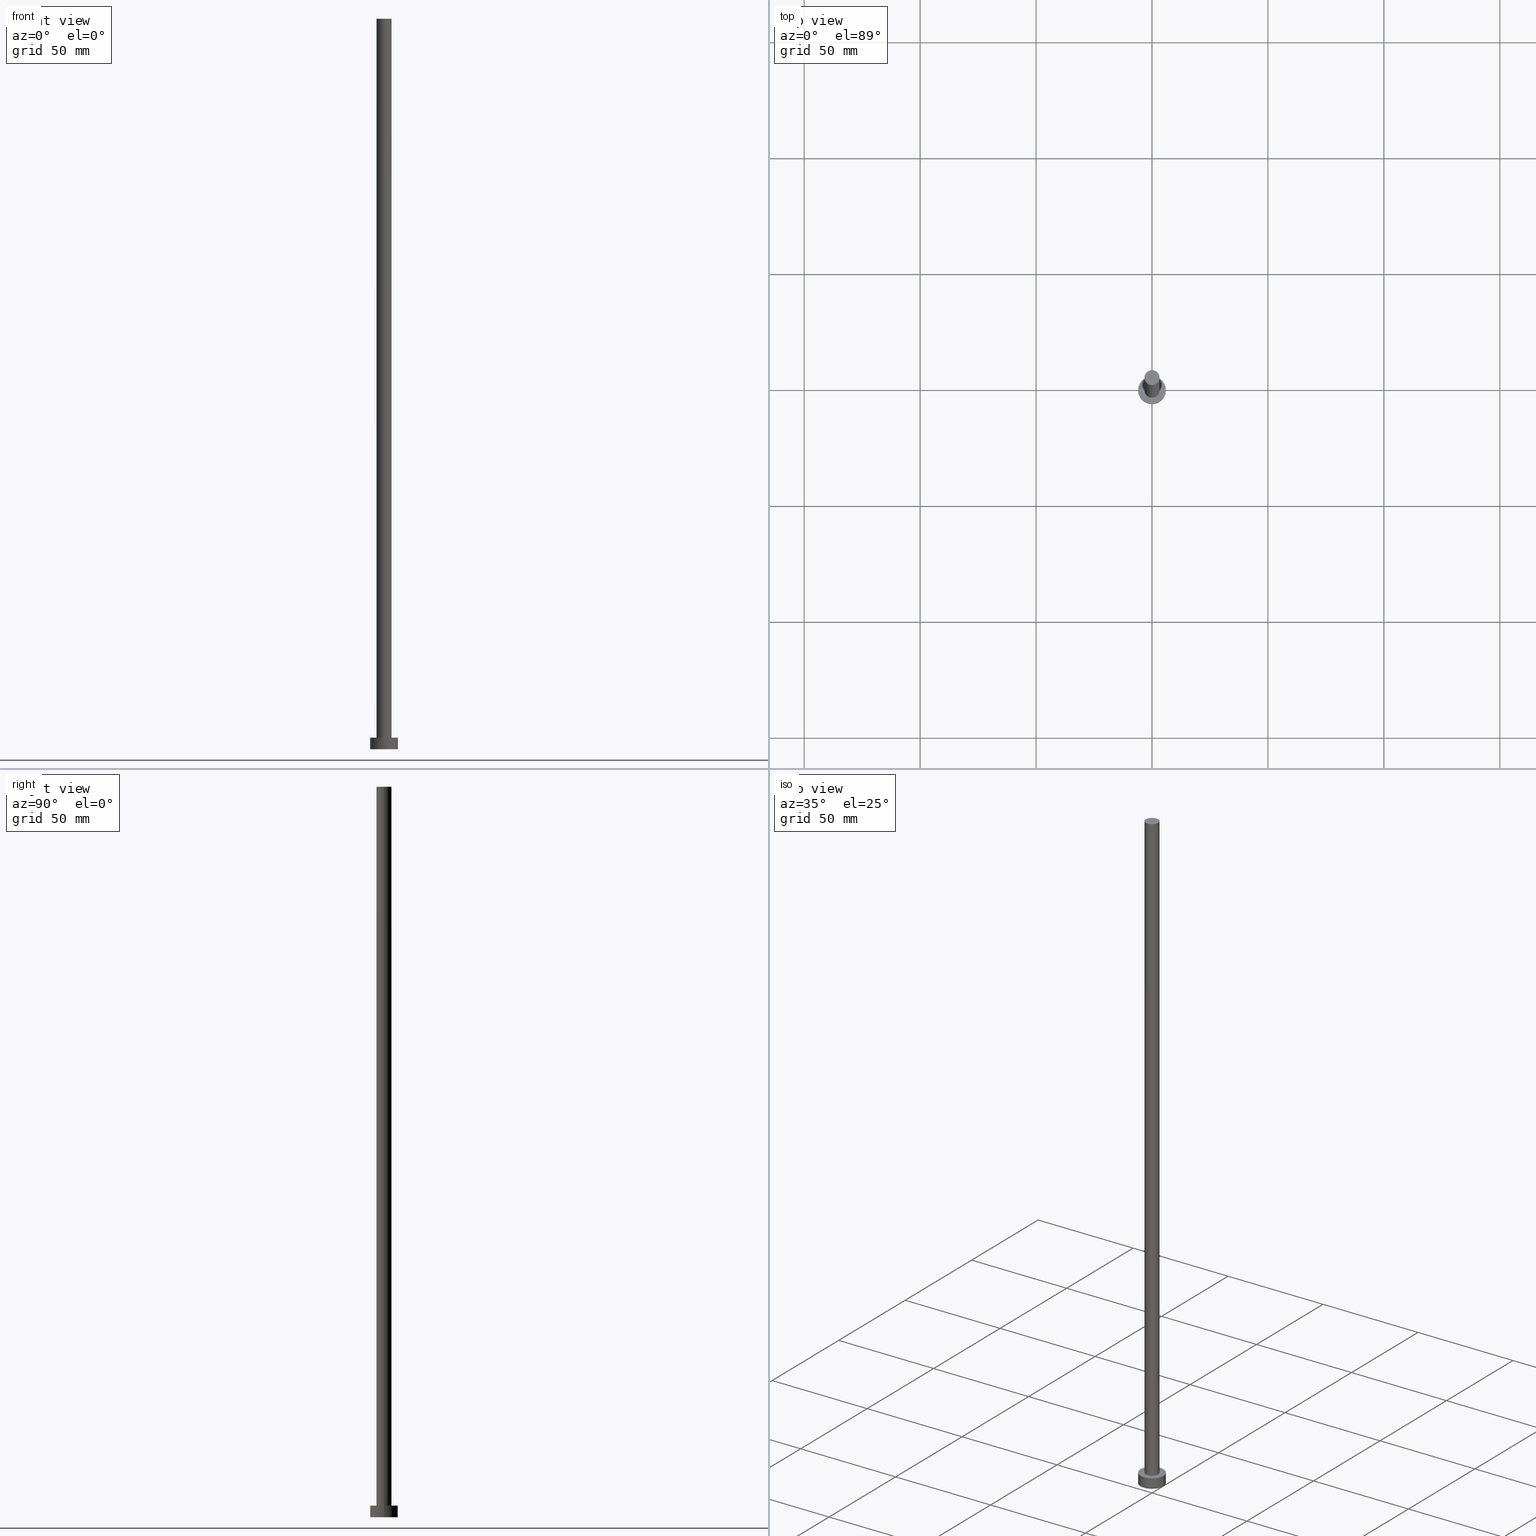
[diagram: canonical four-view strip — front | top / right | iso, engineering-drawing reading convention]
A machine part, canonical four-view strip (front | top / right | iso — engineering-drawing reading convention). The complete STEP part file that produces these views, byte-faithful:
ISO-10303-21;
HEADER;
FILE_DESCRIPTION (( 'STEP AP203' ),
    '1' );
FILE_NAME ('6873.STEP',
    '2023-02-13T15:16:54',
    ( '' ),
    ( '' ),
    'SwSTEP 2.0',
    'SolidWorks 2019',
    '' );
FILE_SCHEMA (( 'CONFIG_CONTROL_DESIGN' ));
ENDSEC;

DATA;
#1 = CARTESIAN_POINT ( 'NONE',  ( 0.000000000000000000, 0.000000000000000000, 0.000000000000000000 ) ) ;
#2 = LINE ( 'NONE', #39, #204 ) ;
#3 = EDGE_CURVE ( 'NONE', #88, #94, #6, .T. ) ;
#4 = DATE_AND_TIME ( #166, #117 ) ;
#5 = VECTOR ( 'NONE', #69, 1000.000000000000000 ) ;
#6 = LINE ( 'NONE', #81, #5 ) ;
#7 = ADVANCED_FACE ( 'NONE', ( #84 ), #67, .T. ) ;
#8 = CARTESIAN_POINT ( 'NONE',  ( 3.250000000000000444, 3.980102097228898231E-16, 315.0000000000000000 ) ) ;
#9 = CC_DESIGN_PERSON_AND_ORGANIZATION_ASSIGNMENT ( #162, #242, ( #227 ) ) ;
#10 =( NAMED_UNIT ( * ) PLANE_ANGLE_UNIT ( ) SI_UNIT ( $, .RADIAN. ) );
#11 = DIRECTION ( 'NONE',  ( 0.000000000000000000, 0.000000000000000000, 1.000000000000000000 ) ) ;
#12 = ADVANCED_FACE ( 'NONE', ( #29 ), #45, .T. ) ;
#13 = APPLICATION_CONTEXT ( 'configuration controlled 3d designs of mechanical parts and assemblies' ) ;
#14 = MANIFOLD_SOLID_BREP ( 'P�idat vysunut�m3', #116 ) ;
#15 = DIRECTION ( 'NONE',  ( 1.000000000000000000, 0.000000000000000000, -0.000000000000000000 ) ) ;
#16 = CIRCLE ( 'NONE', #199, 6.000000000000000888 ) ;
#17 = LOCAL_TIME ( 16, 16, 54.00000000000000000, #201 ) ;
#18 = DIRECTION ( 'NONE',  ( -0.000000000000000000, -0.000000000000000000, -1.000000000000000000 ) ) ;
#19 = CC_DESIGN_PERSON_AND_ORGANIZATION_ASSIGNMENT ( #153, #194, ( #254 ) ) ;
#20 = ORIENTED_EDGE ( 'NONE', *, *, #218, .T. ) ;
#21 = AXIS2_PLACEMENT_3D ( 'NONE', #102, #198, #216 ) ;
#22 = AXIS2_PLACEMENT_3D ( 'NONE', #158, #161, #25 ) ;
#23 = FACE_OUTER_BOUND ( 'NONE', #60, .T. ) ;
#24 = APPROVAL_DATE_TIME ( #240, #189 ) ;
#25 = DIRECTION ( 'NONE',  ( 1.000000000000000000, 0.000000000000000000, 0.000000000000000000 ) ) ;
#26 = APPROVAL_STATUS ( 'not_yet_approved' ) ;
#27 = FACE_OUTER_BOUND ( 'NONE', #96, .T. ) ;
#28 = CC_DESIGN_DATE_AND_TIME_ASSIGNMENT ( #252, #168, ( #254 ) ) ;
#29 = FACE_OUTER_BOUND ( 'NONE', #188, .T. ) ;
#30 = FACE_OUTER_BOUND ( 'NONE', #55, .T. ) ;
#31 = ORIENTED_EDGE ( 'NONE', *, *, #228, .T. ) ;
#32 = DIRECTION ( 'NONE',  ( -0.000000000000000000, -0.000000000000000000, -1.000000000000000000 ) ) ;
#33 = APPROVAL_PERSON_ORGANIZATION ( #223, #217, #66 ) ;
#34 = AXIS2_PLACEMENT_3D ( 'NONE', #170, #246, #147 ) ;
#35 = PERSON_AND_ORGANIZATION ( #54, #92 ) ;
#36 = ADVANCED_FACE ( 'NONE', ( #27 ), #222, .F. ) ;
#37 = CYLINDRICAL_SURFACE ( 'NONE', #163, 3.250000000000000444 ) ;
#38 = ORIENTED_EDGE ( 'NONE', *, *, #235, .F. ) ;
#39 = CARTESIAN_POINT ( 'NONE',  ( -6.000000000000000888, 0.000000000000000000, 5.000000000000000000 ) ) ;
#40 = APPLICATION_PROTOCOL_DEFINITION ( 'international standard', 'config_control_design', 1994, #13 ) ;
#41 = DIRECTION ( 'NONE',  ( -0.000000000000000000, -0.000000000000000000, -1.000000000000000000 ) ) ;
#42 = VECTOR ( 'NONE', #41, 1000.000000000000000 ) ;
#43 = CARTESIAN_POINT ( 'NONE',  ( -6.000000000000000888, 0.000000000000000000, 5.000000000000000000 ) ) ;
#44 = DATE_TIME_ROLE ( 'classification_date' ) ;
#45 = CYLINDRICAL_SURFACE ( 'NONE', #157, 6.000000000000000888 ) ;
#46 = EDGE_CURVE ( 'NONE', #233, #94, #186, .T. ) ;
#47 = VERTEX_POINT ( 'NONE', #51 ) ;
#48 =( GEOMETRIC_REPRESENTATION_CONTEXT ( 3 ) GLOBAL_UNCERTAINTY_ASSIGNED_CONTEXT ( ( #187 ) ) GLOBAL_UNIT_ASSIGNED_CONTEXT ( ( #57, #10, #151 ) ) REPRESENTATION_CONTEXT ( 'NONE', 'WORKASPACE' ) );
#49 = SHAPE_DEFINITION_REPRESENTATION ( #80, #110 ) ;
#50 = DIRECTION ( 'NONE',  ( 1.000000000000000000, 0.000000000000000000, -0.000000000000000000 ) ) ;
#51 = CARTESIAN_POINT ( 'NONE',  ( -3.250000000000000444, 0.000000000000000000, 5.000000000000000000 ) ) ;
#52 = ORIENTED_EDGE ( 'NONE', *, *, #202, .F. ) ;
#53 = CARTESIAN_POINT ( 'NONE',  ( 6.000000000000000888, 7.347880794884120722E-16, 5.000000000000000000 ) ) ;
#54 = PERSON ( 'NEUR�EN�', 'NEUR�EN�', 'NEUR�EN�', ('NEUR�EN�'), ('NEUR�EN�'), ('NEUR�EN�') ) ;
#55 = EDGE_LOOP ( 'NONE', ( #225, #172 ) ) ;
#56 = PLANE ( 'NONE',  #191 ) ;
#57 =( LENGTH_UNIT ( ) NAMED_UNIT ( * ) SI_UNIT ( .MILLI., .METRE. ) );
#58 = AXIS2_PLACEMENT_3D ( 'NONE', #111, #149, #226 ) ;
#59 = CALENDAR_DATE ( 2023, 13, 2 ) ;
#60 = EDGE_LOOP ( 'NONE', ( #52, #251, #95, #20 ) ) ;
#61 = MECHANICAL_CONTEXT ( 'NONE', #181, 'mechanical' ) ;
#62 = COORDINATED_UNIVERSAL_TIME_OFFSET ( 1, 0, .AHEAD. ) ;
#63 = CARTESIAN_POINT ( 'NONE',  ( 0.000000000000000000, 0.000000000000000000, 5.000000000000000000 ) ) ;
#64 = DIRECTION ( 'NONE',  ( 1.000000000000000000, 0.000000000000000000, 0.000000000000000000 ) ) ;
#65 = LINE ( 'NONE', #98, #42 ) ;
#66 = APPROVAL_ROLE ( '' ) ;
#67 = CYLINDRICAL_SURFACE ( 'NONE', #239, 3.250000000000000444 ) ;
#68 = ADVANCED_FACE ( 'NONE', ( #30 ), #106, .T. ) ;
#69 = DIRECTION ( 'NONE',  ( -0.000000000000000000, -0.000000000000000000, -1.000000000000000000 ) ) ;
#70 = CC_DESIGN_PERSON_AND_ORGANIZATION_ASSIGNMENT ( #143, #122, ( #227 ) ) ;
#71 = ORIENTED_EDGE ( 'NONE', *, *, #93, .T. ) ;
#72 = ORIENTED_EDGE ( 'NONE', *, *, #164, .T. ) ;
#73 = FACE_OUTER_BOUND ( 'NONE', #155, .T. ) ;
#74 = CC_DESIGN_SECURITY_CLASSIFICATION ( #207, ( #227 ) ) ;
#75 = ORIENTED_EDGE ( 'NONE', *, *, #218, .F. ) ;
#76 = DIRECTION ( 'NONE',  ( -1.000000000000000000, 0.000000000000000000, 0.000000000000000000 ) ) ;
#77 = AXIS2_PLACEMENT_3D ( 'NONE', #1, #213, #160 ) ;
#78 = APPROVAL_STATUS ( 'not_yet_approved' ) ;
#79 = APPROVAL_DATE_TIME ( #104, #217 ) ;
#80 = PRODUCT_DEFINITION_SHAPE ( 'NONE', 'NONE',  #254 ) ;
#81 = CARTESIAN_POINT ( 'NONE',  ( 6.000000000000000888, 7.347880794884120722E-16, 5.000000000000000000 ) ) ;
#82 = CIRCLE ( 'NONE', #133, 6.000000000000000888 ) ;
#83 = CALENDAR_DATE ( 2023, 13, 2 ) ;
#84 = FACE_OUTER_BOUND ( 'NONE', #171, .T. ) ;
#85 = CALENDAR_DATE ( 2023, 13, 2 ) ;
#86 = DIRECTION ( 'NONE',  ( 1.000000000000000000, 0.000000000000000000, -0.000000000000000000 ) ) ;
#87 = CIRCLE ( 'NONE', #130, 3.250000000000000444 ) ;
#88 = VERTEX_POINT ( 'NONE', #53 ) ;
#89 = LINE ( 'NONE', #128, #173 ) ;
#90 = ORIENTED_EDGE ( 'NONE', *, *, #46, .T. ) ;
#91 = EDGE_CURVE ( 'NONE', #209, #47, #89, .T. ) ;
#92 = ORGANIZATION ( 'NEUR�EN�', 'NEUR�EN�', '' ) ;
#93 = EDGE_CURVE ( 'NONE', #139, #88, #16, .T. ) ;
#94 = VERTEX_POINT ( 'NONE', #206 ) ;
#95 = ORIENTED_EDGE ( 'NONE', *, *, #91, .T. ) ;
#96 = EDGE_LOOP ( 'NONE', ( #208, #255 ) ) ;
#97 = APPROVAL_DATE_TIME ( #115, #159 ) ;
#98 = CARTESIAN_POINT ( 'NONE',  ( 3.250000000000000444, 3.980102097228898231E-16, 315.0000000000000000 ) ) ;
#99 = AXIS2_PLACEMENT_3D ( 'NONE', #105, #167, #244 ) ;
#100 = DIRECTION ( 'NONE',  ( -1.000000000000000000, 0.000000000000000000, 0.000000000000000000 ) ) ;
#101 = DIRECTION ( 'NONE',  ( 1.000000000000000000, 0.000000000000000000, 0.000000000000000000 ) ) ;
#102 = CARTESIAN_POINT ( 'NONE',  ( 0.000000000000000000, 0.000000000000000000, 315.0000000000000000 ) ) ;
#103 = ADVANCED_FACE ( 'NONE', ( #152, #73 ), #56, .T. ) ;
#104 = DATE_AND_TIME ( #85, #17 ) ;
#105 = CARTESIAN_POINT ( 'NONE',  ( 0.000000000000000000, 0.000000000000000000, 5.000000000000000000 ) ) ;
#106 = PLANE ( 'NONE',  #236 ) ;
#107 = ORIENTED_EDGE ( 'NONE', *, *, #91, .F. ) ;
#108 = LOCAL_TIME ( 16, 16, 54.00000000000000000, #62 ) ;
#109 = CARTESIAN_POINT ( 'NONE',  ( 0.000000000000000000, 0.000000000000000000, 315.0000000000000000 ) ) ;
#110 = ADVANCED_BREP_SHAPE_REPRESENTATION ( '6873', ( #14, #77 ), #48 ) ;
#111 = CARTESIAN_POINT ( 'NONE',  ( 0.000000000000000000, 0.000000000000000000, 0.000000000000000000 ) ) ;
#112 = ADVANCED_FACE ( 'NONE', ( #127 ), #205, .T. ) ;
#113 = ORIENTED_EDGE ( 'NONE', *, *, #177, .T. ) ;
#114 = PERSON_AND_ORGANIZATION_ROLE ( 'design_owner' ) ;
#115 = DATE_AND_TIME ( #59, #237 ) ;
#116 = CLOSED_SHELL ( 'NONE', ( #7, #112, #12, #103, #36, #169, #68 ) ) ;
#117 = LOCAL_TIME ( 16, 16, 54.00000000000000000, #141 ) ;
#118 = ORIENTED_EDGE ( 'NONE', *, *, #3, .T. ) ;
#119 = PERSON_AND_ORGANIZATION ( #54, #92 ) ;
#120 = CARTESIAN_POINT ( 'NONE',  ( -3.250000000000000444, 0.000000000000000000, 315.0000000000000000 ) ) ;
#121 = CC_DESIGN_PERSON_AND_ORGANIZATION_ASSIGNMENT ( #35, #114, ( #135 ) ) ;
#122 = PERSON_AND_ORGANIZATION_ROLE ( 'design_supplier' ) ;
#123 = CARTESIAN_POINT ( 'NONE',  ( 0.000000000000000000, 0.000000000000000000, 5.000000000000000000 ) ) ;
#124 = PERSON_AND_ORGANIZATION ( #54, #92 ) ;
#125 = CARTESIAN_POINT ( 'NONE',  ( 0.000000000000000000, 0.000000000000000000, 315.0000000000000000 ) ) ;
#126 = CC_DESIGN_APPROVAL ( #159, ( #254 ) ) ;
#127 = FACE_OUTER_BOUND ( 'NONE', #211, .T. ) ;
#128 = CARTESIAN_POINT ( 'NONE',  ( -3.250000000000000444, 0.000000000000000000, 315.0000000000000000 ) ) ;
#129 = VERTEX_POINT ( 'NONE', #8 ) ;
#130 = AXIS2_PLACEMENT_3D ( 'NONE', #140, #253, #154 ) ;
#131 = EDGE_CURVE ( 'NONE', #88, #139, #145, .T. ) ;
#132 = CARTESIAN_POINT ( 'NONE',  ( 0.000000000000000000, 0.000000000000000000, 5.000000000000000000 ) ) ;
#133 = AXIS2_PLACEMENT_3D ( 'NONE', #197, #137, #64 ) ;
#134 = DIRECTION ( 'NONE',  ( 0.000000000000000000, 0.000000000000000000, 1.000000000000000000 ) ) ;
#135 = PRODUCT ( '6873', '6873', '', ( #61 ) ) ;
#136 = ORIENTED_EDGE ( 'NONE', *, *, #202, .T. ) ;
#137 = DIRECTION ( 'NONE',  ( 0.000000000000000000, 0.000000000000000000, 1.000000000000000000 ) ) ;
#138 = CARTESIAN_POINT ( 'NONE',  ( 0.000000000000000000, 0.000000000000000000, 315.0000000000000000 ) ) ;
#139 = VERTEX_POINT ( 'NONE', #43 ) ;
#140 = CARTESIAN_POINT ( 'NONE',  ( 0.000000000000000000, 0.000000000000000000, 315.0000000000000000 ) ) ;
#141 = COORDINATED_UNIVERSAL_TIME_OFFSET ( 1, 0, .AHEAD. ) ;
#142 = DIRECTION ( 'NONE',  ( -0.000000000000000000, -0.000000000000000000, -1.000000000000000000 ) ) ;
#143 = PERSON_AND_ORGANIZATION ( #54, #92 ) ;
#144 = CC_DESIGN_DATE_AND_TIME_ASSIGNMENT ( #4, #44, ( #207 ) ) ;
#145 = CIRCLE ( 'NONE', #34, 6.000000000000000888 ) ;
#146 = DIRECTION ( 'NONE',  ( 1.000000000000000000, 0.000000000000000000, 0.000000000000000000 ) ) ;
#147 = DIRECTION ( 'NONE',  ( 1.000000000000000000, 0.000000000000000000, 0.000000000000000000 ) ) ;
#148 = ORIENTED_EDGE ( 'NONE', *, *, #164, .F. ) ;
#149 = DIRECTION ( 'NONE',  ( 0.000000000000000000, 0.000000000000000000, 1.000000000000000000 ) ) ;
#150 = ORIENTED_EDGE ( 'NONE', *, *, #131, .F. ) ;
#151 =( NAMED_UNIT ( * ) SI_UNIT ( $, .STERADIAN. ) SOLID_ANGLE_UNIT ( ) );
#152 = FACE_BOUND ( 'NONE', #196, .T. ) ;
#153 = PERSON_AND_ORGANIZATION ( #54, #92 ) ;
#154 = DIRECTION ( 'NONE',  ( 1.000000000000000000, 0.000000000000000000, 0.000000000000000000 ) ) ;
#155 = EDGE_LOOP ( 'NONE', ( #71, #224 ) ) ;
#156 = CARTESIAN_POINT ( 'NONE',  ( -6.000000000000000888, 0.000000000000000000, 0.000000000000000000 ) ) ;
#157 = AXIS2_PLACEMENT_3D ( 'NONE', #123, #165, #203 ) ;
#158 = CARTESIAN_POINT ( 'NONE',  ( 0.000000000000000000, 0.000000000000000000, 5.000000000000000000 ) ) ;
#159 = APPROVAL ( #78, 'NEUR�EN�' ) ;
#160 = DIRECTION ( 'NONE',  ( 1.000000000000000000, 0.000000000000000000, 0.000000000000000000 ) ) ;
#161 = DIRECTION ( 'NONE',  ( 0.000000000000000000, 0.000000000000000000, 1.000000000000000000 ) ) ;
#162 = PERSON_AND_ORGANIZATION ( #54, #92 ) ;
#163 = AXIS2_PLACEMENT_3D ( 'NONE', #138, #18, #76 ) ;
#164 = EDGE_CURVE ( 'NONE', #215, #47, #179, .T. ) ;
#165 = DIRECTION ( 'NONE',  ( -0.000000000000000000, -0.000000000000000000, -1.000000000000000000 ) ) ;
#166 = CALENDAR_DATE ( 2023, 13, 2 ) ;
#167 = DIRECTION ( 'NONE',  ( -0.000000000000000000, -0.000000000000000000, -1.000000000000000000 ) ) ;
#168 = DATE_TIME_ROLE ( 'creation_date' ) ;
#169 = ADVANCED_FACE ( 'NONE', ( #23 ), #37, .T. ) ;
#170 = CARTESIAN_POINT ( 'NONE',  ( 0.000000000000000000, 0.000000000000000000, 5.000000000000000000 ) ) ;
#171 = EDGE_LOOP ( 'NONE', ( #38, #136, #72, #107 ) ) ;
#172 = ORIENTED_EDGE ( 'NONE', *, *, #235, .T. ) ;
#173 = VECTOR ( 'NONE', #32, 1000.000000000000000 ) ;
#174 = PRODUCT_RELATED_PRODUCT_CATEGORY ( 'detail', '', ( #135 ) ) ;
#175 = CARTESIAN_POINT ( 'NONE',  ( 3.250000000000000444, 3.980102097228898231E-16, 5.000000000000000000 ) ) ;
#176 = CALENDAR_DATE ( 2023, 13, 2 ) ;
#177 = EDGE_CURVE ( 'NONE', #94, #233, #82, .T. ) ;
#178 = APPROVAL_PERSON_ORGANIZATION ( #119, #159, #193 ) ;
#179 = CIRCLE ( 'NONE', #22, 3.250000000000000444 ) ;
#180 = CARTESIAN_POINT ( 'NONE',  ( 0.000000000000000000, 0.000000000000000000, 0.000000000000000000 ) ) ;
#181 = APPLICATION_CONTEXT ( 'configuration controlled 3d designs of mechanical parts and assemblies' ) ;
#182 = CC_DESIGN_APPROVAL ( #189, ( #207 ) ) ;
#183 = PERSON_AND_ORGANIZATION_ROLE ( 'classification_officer' ) ;
#184 = COORDINATED_UNIVERSAL_TIME_OFFSET ( 1, 0, .AHEAD. ) ;
#185 = APPROVAL_STATUS ( 'not_yet_approved' ) ;
#186 = CIRCLE ( 'NONE', #58, 6.000000000000000888 ) ;
#187 = UNCERTAINTY_MEASURE_WITH_UNIT (LENGTH_MEASURE( 1.000000000000000082E-05 ), #57, 'distance_accuracy_value', 'NONE');
#188 = EDGE_LOOP ( 'NONE', ( #238, #192, #31, #90 ) ) ;
#189 = APPROVAL ( #185, 'NEUR�EN�' ) ;
#190 = CARTESIAN_POINT ( 'NONE',  ( 0.000000000000000000, 0.000000000000000000, 5.000000000000000000 ) ) ;
#191 = AXIS2_PLACEMENT_3D ( 'NONE', #132, #134, #15 ) ;
#192 = ORIENTED_EDGE ( 'NONE', *, *, #93, .F. ) ;
#193 = APPROVAL_ROLE ( '' ) ;
#194 = PERSON_AND_ORGANIZATION_ROLE ( 'creator' ) ;
#195 = APPROVAL_PERSON_ORGANIZATION ( #124, #189, #245 ) ;
#196 = EDGE_LOOP ( 'NONE', ( #75, #148 ) ) ;
#197 = CARTESIAN_POINT ( 'NONE',  ( 0.000000000000000000, 0.000000000000000000, 0.000000000000000000 ) ) ;
#198 = DIRECTION ( 'NONE',  ( 0.000000000000000000, 0.000000000000000000, 1.000000000000000000 ) ) ;
#199 = AXIS2_PLACEMENT_3D ( 'NONE', #190, #11, #146 ) ;
#200 = CIRCLE ( 'NONE', #21, 3.250000000000000444 ) ;
#201 = COORDINATED_UNIVERSAL_TIME_OFFSET ( 1, 0, .AHEAD. ) ;
#202 = EDGE_CURVE ( 'NONE', #129, #215, #65, .T. ) ;
#203 = DIRECTION ( 'NONE',  ( -1.000000000000000000, 0.000000000000000000, 0.000000000000000000 ) ) ;
#204 = VECTOR ( 'NONE', #214, 1000.000000000000000 ) ;
#205 = CYLINDRICAL_SURFACE ( 'NONE', #99, 6.000000000000000888 ) ;
#206 = CARTESIAN_POINT ( 'NONE',  ( 6.000000000000000888, 7.347880794884120722E-16, 0.000000000000000000 ) ) ;
#207 = SECURITY_CLASSIFICATION ( '', '', #241 ) ;
#208 = ORIENTED_EDGE ( 'NONE', *, *, #46, .F. ) ;
#209 = VERTEX_POINT ( 'NONE', #120 ) ;
#210 = CC_DESIGN_PERSON_AND_ORGANIZATION_ASSIGNMENT ( #219, #183, ( #207 ) ) ;
#211 = EDGE_LOOP ( 'NONE', ( #150, #118, #113, #230 ) ) ;
#212 = EDGE_CURVE ( 'NONE', #209, #129, #200, .T. ) ;
#213 = DIRECTION ( 'NONE',  ( 0.000000000000000000, 0.000000000000000000, 1.000000000000000000 ) ) ;
#214 = DIRECTION ( 'NONE',  ( -0.000000000000000000, -0.000000000000000000, -1.000000000000000000 ) ) ;
#215 = VERTEX_POINT ( 'NONE', #175 ) ;
#216 = DIRECTION ( 'NONE',  ( 1.000000000000000000, 0.000000000000000000, 0.000000000000000000 ) ) ;
#217 = APPROVAL ( #26, 'NEUR�EN�' ) ;
#218 = EDGE_CURVE ( 'NONE', #47, #215, #250, .T. ) ;
#219 = PERSON_AND_ORGANIZATION ( #54, #92 ) ;
#220 = LOCAL_TIME ( 16, 16, 54.00000000000000000, #184 ) ;
#221 = CC_DESIGN_APPROVAL ( #217, ( #227 ) ) ;
#222 = PLANE ( 'NONE',  #248 ) ;
#223 = PERSON_AND_ORGANIZATION ( #54, #92 ) ;
#224 = ORIENTED_EDGE ( 'NONE', *, *, #131, .T. ) ;
#225 = ORIENTED_EDGE ( 'NONE', *, *, #212, .T. ) ;
#226 = DIRECTION ( 'NONE',  ( 1.000000000000000000, 0.000000000000000000, 0.000000000000000000 ) ) ;
#227 = PRODUCT_DEFINITION_FORMATION_WITH_SPECIFIED_SOURCE ( 'LIBOVOLN�', '', #135, .NOT_KNOWN. ) ;
#228 = EDGE_CURVE ( 'NONE', #139, #233, #2, .T. ) ;
#229 = DIRECTION ( 'NONE',  ( 0.000000000000000000, 0.000000000000000000, 1.000000000000000000 ) ) ;
#230 = ORIENTED_EDGE ( 'NONE', *, *, #228, .F. ) ;
#231 = COORDINATED_UNIVERSAL_TIME_OFFSET ( 1, 0, .AHEAD. ) ;
#232 = DIRECTION ( 'NONE',  ( 0.000000000000000000, 0.000000000000000000, 1.000000000000000000 ) ) ;
#233 = VERTEX_POINT ( 'NONE', #156 ) ;
#234 = APPLICATION_PROTOCOL_DEFINITION ( 'international standard', 'config_control_design', 1994, #181 ) ;
#235 = EDGE_CURVE ( 'NONE', #129, #209, #87, .T. ) ;
#236 = AXIS2_PLACEMENT_3D ( 'NONE', #109, #249, #50 ) ;
#237 = LOCAL_TIME ( 16, 16, 54.00000000000000000, #231 ) ;
#238 = ORIENTED_EDGE ( 'NONE', *, *, #3, .F. ) ;
#239 = AXIS2_PLACEMENT_3D ( 'NONE', #125, #142, #100 ) ;
#240 = DATE_AND_TIME ( #83, #220 ) ;
#241 = SECURITY_CLASSIFICATION_LEVEL ( 'unclassified' ) ;
#242 = PERSON_AND_ORGANIZATION_ROLE ( 'creator' ) ;
#243 = AXIS2_PLACEMENT_3D ( 'NONE', #63, #232, #101 ) ;
#244 = DIRECTION ( 'NONE',  ( -1.000000000000000000, 0.000000000000000000, 0.000000000000000000 ) ) ;
#245 = APPROVAL_ROLE ( '' ) ;
#246 = DIRECTION ( 'NONE',  ( 0.000000000000000000, 0.000000000000000000, 1.000000000000000000 ) ) ;
#247 = DESIGN_CONTEXT ( 'detailed design', #13, 'design' ) ;
#248 = AXIS2_PLACEMENT_3D ( 'NONE', #180, #229, #86 ) ;
#249 = DIRECTION ( 'NONE',  ( 0.000000000000000000, 0.000000000000000000, 1.000000000000000000 ) ) ;
#250 = CIRCLE ( 'NONE', #243, 3.250000000000000444 ) ;
#251 = ORIENTED_EDGE ( 'NONE', *, *, #212, .F. ) ;
#252 = DATE_AND_TIME ( #176, #108 ) ;
#253 = DIRECTION ( 'NONE',  ( 0.000000000000000000, 0.000000000000000000, 1.000000000000000000 ) ) ;
#254 = PRODUCT_DEFINITION ( 'NEZN�M�', '', #227, #247 ) ;
#255 = ORIENTED_EDGE ( 'NONE', *, *, #177, .F. ) ;
ENDSEC;
END-ISO-10303-21;
